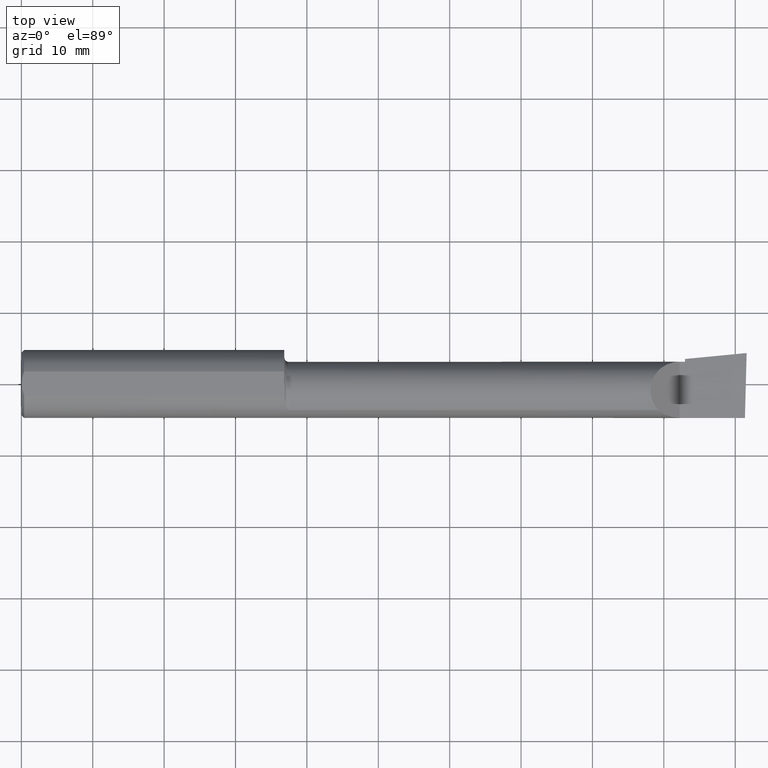
[diagram: clean part render]
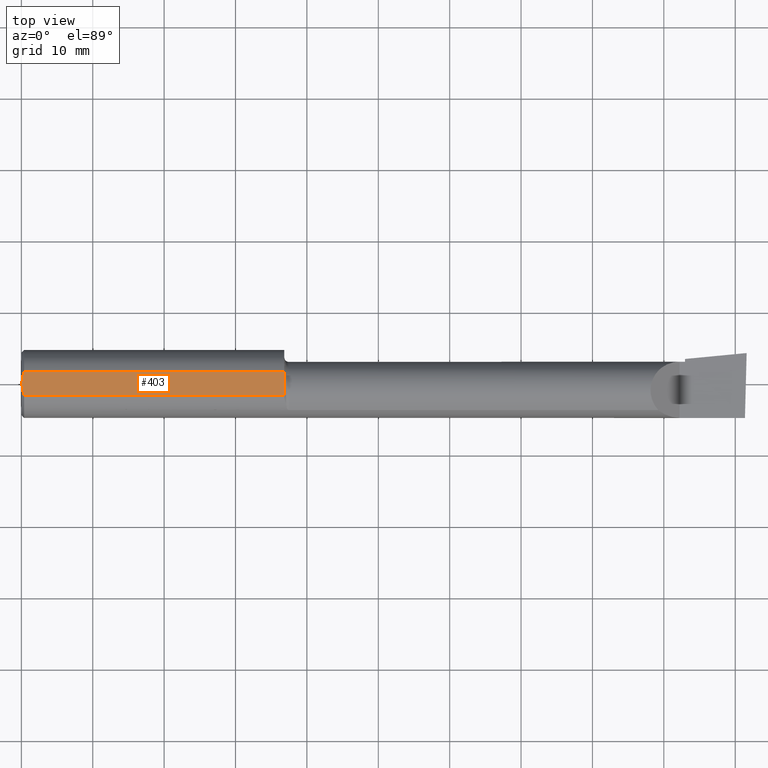
[diagram: same view with one face highlighted and labeled with its STEP entity id]
A machine part, top view. The second image highlights one B-rep face of the part: STEP entity #403.
In plain terms, the highlighted planar face has unit normal (0, -0, -1).
Its self-contained STEP definition (entity closure, byte-faithful):
#4 = CARTESIAN_POINT ( 'NONE',  ( 0.01125230581755086272, 0.05532998191409921329, 0.1753500000000000059 ) ) ;
#9 = CARTESIAN_POINT ( 'NONE',  ( 1.450000000000000178, 0.06597272163553663527, 0.1753499999999999781 ) ) ;
#16 = CARTESIAN_POINT ( 'NONE',  ( 4.000000000000000000, 0.2373500000000000332, 0.1753499999999999504 ) ) ;
#19 = VERTEX_POINT ( 'NONE', #386 ) ;
#21 = CARTESIAN_POINT ( 'NONE',  ( 1.450000000000000622, 0.01439074984011678125, 0.1753499999999999781 ) ) ;
#44 = EDGE_LOOP ( 'NONE', ( #298, #463, #92, #205, #453, #249 ) ) ;
#64 = CARTESIAN_POINT ( 'NONE',  ( 0.003000000000000171366, 0.01127363201155561975, 0.1753499999999999781 ) ) ;
#70 = CARTESIAN_POINT ( 'NONE',  ( 1.451116380138691264, -0.06597272163553656588, 0.1753499999999999781 ) ) ;
#92 = ORIENTED_EDGE ( 'NONE', *, *, #144, .F. ) ;
#96 = LINE ( 'NONE', #548, #243 ) ;
#102 = LINE ( 'NONE', #115, #182 ) ;
#109 = CARTESIAN_POINT ( 'NONE',  ( 1.451116380138691264, -0.06597272163553656588, 0.1753499999999999781 ) ) ;
#115 = CARTESIAN_POINT ( 'NONE',  ( 1.450000000000000178, 0.2373500000000000332, 0.1753499999999999504 ) ) ;
#116 = CARTESIAN_POINT ( 'NONE',  ( 1.451446793517542799, -0.01487494471388619253, 0.1753500000000000059 ) ) ;
#120 = VERTEX_POINT ( 'NONE', #132 ) ;
#122 = CARTESIAN_POINT ( 'NONE',  ( 1.451790586316525244, -0.05136925160306254207, 0.1753499999999999781 ) ) ;
#132 = CARTESIAN_POINT ( 'NONE',  ( 0.01499999999999997863, -0.06597272163553657975, 0.1753499999999999781 ) ) ;
#141 = VERTEX_POINT ( 'NONE', #519 ) ;
#144 = EDGE_CURVE ( 'NONE', #19, #413, #375, .T. ) ;
#146 = VERTEX_POINT ( 'NONE', #372 ) ;
#159 = PLANE ( 'NONE',  #201 ) ;
#164 = EDGE_CURVE ( 'NONE', #141, #601, #365, .T. ) ;
#166 = CARTESIAN_POINT ( 'NONE',  ( 0.003000000000000218638, 2.334609556160449697E-17, 0.1753499999999999781 ) ) ;
#169 = CARTESIAN_POINT ( 'NONE',  ( 0.008227791779583753379, -0.04447712204611812409, 0.1753499999999999781 ) ) ;
#182 = VECTOR ( 'NONE', #306, 39.37007874015748143 ) ;
#201 = AXIS2_PLACEMENT_3D ( 'NONE', #16, #259, #573 ) ;
#205 = ORIENTED_EDGE ( 'NONE', *, *, #396, .F. ) ;
#220 = CARTESIAN_POINT ( 'NONE',  ( 1.451049074448707454, -0.007621984361079512695, 0.1753499999999999504 ) ) ;
#233 = B_SPLINE_CURVE_WITH_KNOTS ( 'NONE', 3,
 ( #166, #64, #506, #316, #4, #313 ),
 .UNSPECIFIED., .F., .F.,
 ( 4, 2, 4 ),
 ( 0.003480013901590607410, 0.004330767971208083697, 0.005181522040825559984 ),
 .UNSPECIFIED. ) ;
#243 = VECTOR ( 'NONE', #406, 39.37007874015748143 ) ;
#249 = ORIENTED_EDGE ( 'NONE', *, *, #296, .F. ) ;
#259 = DIRECTION ( 'NONE',  ( 0.000000000000000000, -1.438723400918613551E-16, -1.000000000000000000 ) ) ;
#267 = CARTESIAN_POINT ( 'NONE',  ( 1.451479449616799977, -0.05867400124853481419, 0.1753500000000000059 ) ) ;
#273 = CARTESIAN_POINT ( 'NONE',  ( 0.01499999999999997863, -0.06597272163553657975, 0.1753499999999999781 ) ) ;
#296 = EDGE_CURVE ( 'NONE', #601, #120, #96, .T. ) ;
#298 = ORIENTED_EDGE ( 'NONE', *, *, #164, .F. ) ;
#306 = DIRECTION ( 'NONE',  ( -4.268512490100411279E-18, -1.000000000000000000, 1.438723400918613551E-16 ) ) ;
#313 = CARTESIAN_POINT ( 'NONE',  ( 0.01499999999999999424, 0.06597272163553663527, 0.1753499999999999781 ) ) ;
#316 = CARTESIAN_POINT ( 'NONE',  ( 0.008244775919947423121, 0.04453482769755854470, 0.1753499999999999504 ) ) ;
#320 = CARTESIAN_POINT ( 'NONE',  ( 0.004093196532652184846, -0.02240707710020816562, 0.1753499999999999504 ) ) ;
#365 = B_SPLINE_CURVE_WITH_KNOTS ( 'NONE', 3,
 ( #628, #21, #475, #220, #116, #618, #432, #122, #267, #109 ),
 .UNSPECIFIED., .F., .F.,
 ( 4, 2, 2, 2, 4 ),
 ( 0.01227444304810770825, 0.01283060897602141849, 0.01338677490393512873, 0.01394294083184883723, 0.01449910675976254747 ),
 .UNSPECIFIED. ) ;
#367 = B_SPLINE_CURVE_WITH_KNOTS ( 'NONE', 3,
 ( #273, #387, #169, #320, #481, #627 ),
 .UNSPECIFIED., .F., .F.,
 ( 4, 2, 4 ),
 ( 0.001779942938356815062, 0.002629978419973711019, 0.003480013901590607410 ),
 .UNSPECIFIED. ) ;
#372 = CARTESIAN_POINT ( 'NONE',  ( 0.003000000000000218638, 2.334609556160449697E-17, 0.1753499999999999781 ) ) ;
#375 = LINE ( 'NONE', #469, #566 ) ;
#386 = CARTESIAN_POINT ( 'NONE',  ( 0.01499999999999999424, 0.06597272163553663527, 0.1753499999999999781 ) ) ;
#387 = CARTESIAN_POINT ( 'NONE',  ( 0.01128414053810045115, -0.05542038647445819699, 0.1753499999999999781 ) ) ;
#396 = EDGE_CURVE ( 'NONE', #146, #19, #233, .T. ) ;
#403 = ADVANCED_FACE ( 'NONE', ( #606 ), #159, .F. ) ;
#406 = DIRECTION ( 'NONE',  ( -1.000000000000000000, -0.000000000000000000, -0.000000000000000000 ) ) ;
#413 = VERTEX_POINT ( 'NONE', #9 ) ;
#432 = CARTESIAN_POINT ( 'NONE',  ( 1.452020598872754364, -0.03676412395315125509, 0.1753500000000000059 ) ) ;
#453 = ORIENTED_EDGE ( 'NONE', *, *, #584, .F. ) ;
#463 = ORIENTED_EDGE ( 'NONE', *, *, #511, .F. ) ;
#469 = CARTESIAN_POINT ( 'NONE',  ( 0.000000000000000000, 0.06597272163553663527, 0.1753499999999999781 ) ) ;
#475 = CARTESIAN_POINT ( 'NONE',  ( 1.450322286002908356, 0.007053356780977244889, 0.1753499999999999781 ) ) ;
#481 = CARTESIAN_POINT ( 'NONE',  ( 0.003000000000000172234, -0.01126410975715120416, 0.1753500000000000059 ) ) ;
#506 = CARTESIAN_POINT ( 'NONE',  ( 0.004115035183746295483, 0.02255629470626744487, 0.1753499999999999781 ) ) ;
#511 = EDGE_CURVE ( 'NONE', #413, #141, #102, .T. ) ;
#519 = CARTESIAN_POINT ( 'NONE',  ( 1.450000000000000178, 0.02172596722253180429, 0.1753499999999999781 ) ) ;
#548 = CARTESIAN_POINT ( 'NONE',  ( 0.000000000000000000, -0.06597272163553657975, 0.1753499999999999781 ) ) ;
#566 = VECTOR ( 'NONE', #624, 39.37007874015748143 ) ;
#573 = DIRECTION ( 'NONE',  ( 0.000000000000000000, 1.000000000000000000, -1.438723400918613551E-16 ) ) ;
#584 = EDGE_CURVE ( 'NONE', #120, #146, #367, .T. ) ;
#601 = VERTEX_POINT ( 'NONE', #70 ) ;
#606 = FACE_OUTER_BOUND ( 'NONE', #44, .T. ) ;
#618 = CARTESIAN_POINT ( 'NONE',  ( 1.451936435452952701, -0.02946557294850932207, 0.1753499999999999504 ) ) ;
#624 = DIRECTION ( 'NONE',  ( 1.000000000000000000, 0.000000000000000000, 0.000000000000000000 ) ) ;
#627 = CARTESIAN_POINT ( 'NONE',  ( 0.003000000000000218638, 2.334609556160449697E-17, 0.1753499999999999781 ) ) ;
#628 = CARTESIAN_POINT ( 'NONE',  ( 1.450000000000000178, 0.02172596722253180429, 0.1753499999999999781 ) ) ;